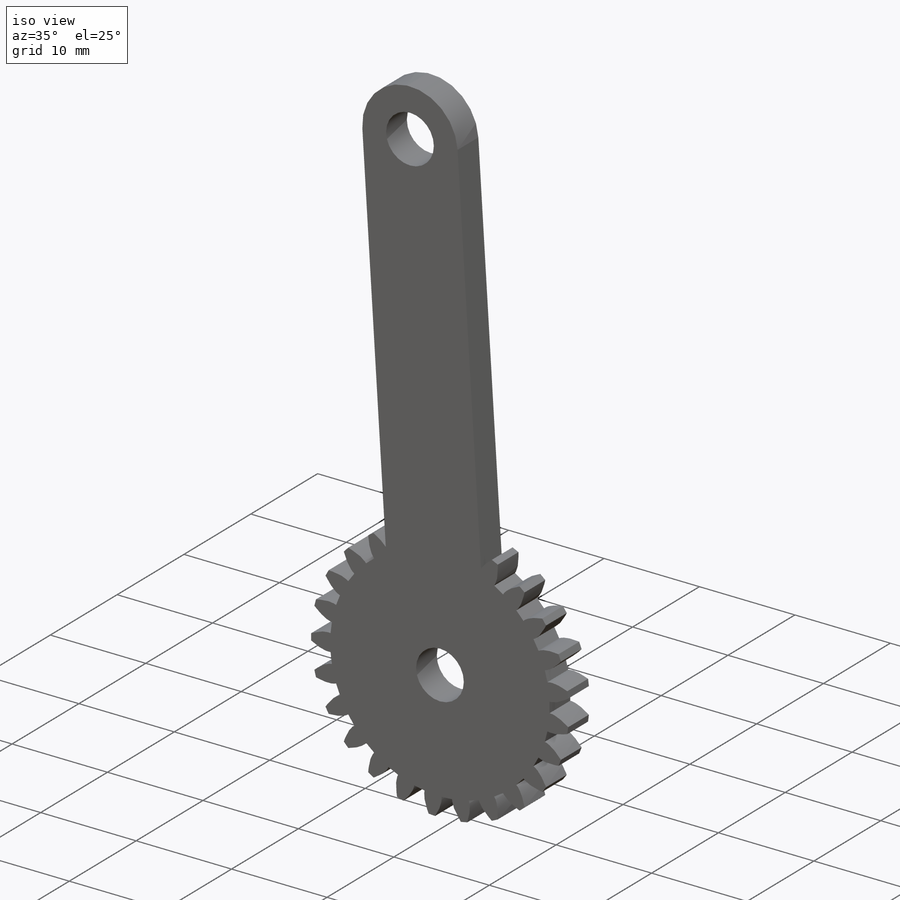
[diagram: iso view]
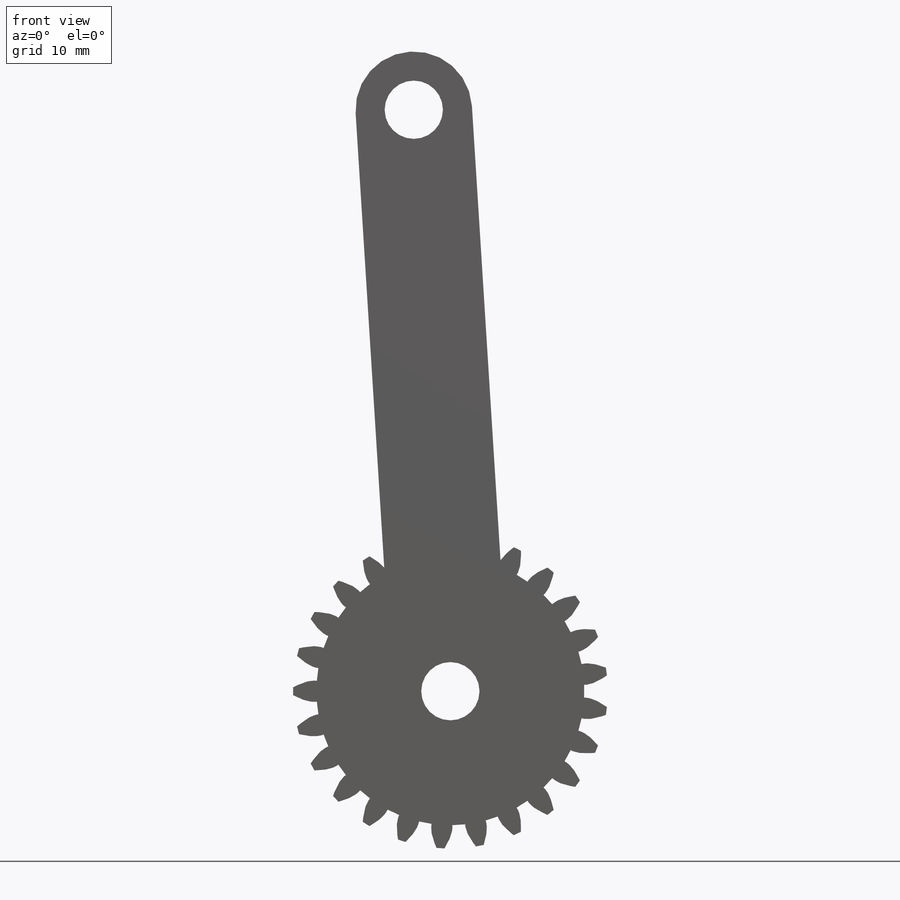
[diagram: front view]
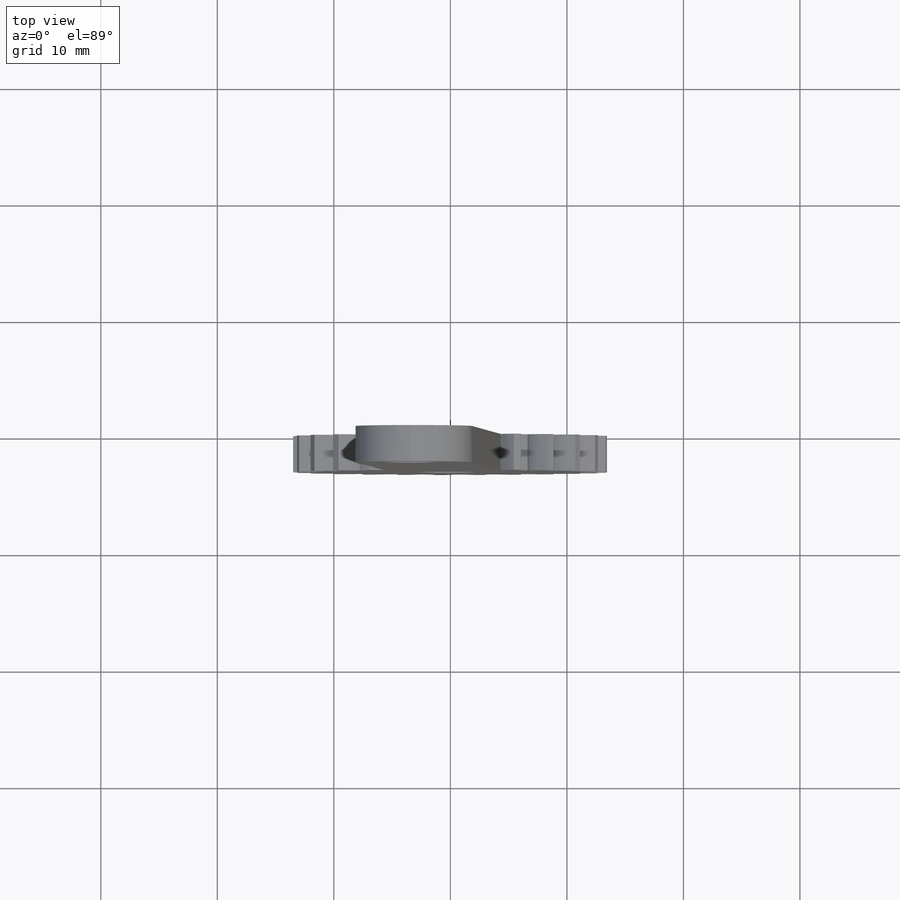
[diagram: top view]
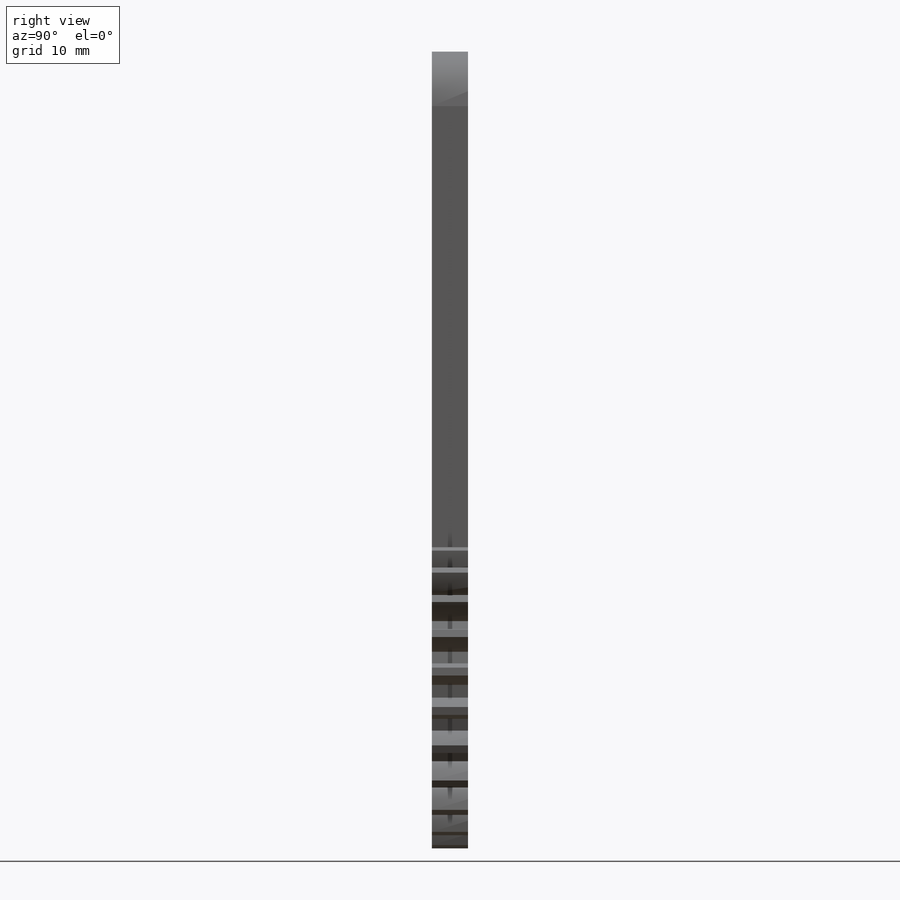
[diagram: right view]
SOLIDWORKS PART (.sldprt)
format: sldprt  version: not decoded by parser v0  size: 739,840 bytes
history: native  units: mm
features: sketch x5, extrude x4, fillet x2, material x1, pattern_circular x1 (+13 scaffold rows collapsed)
feature tree (26):
  scaffold x13  (default folders/planes/origin — collapsed)
  material  "Teak"
  sketch  "Sketch1"  dims[c1.D1=25.0mm c1.D2=~11.621169mm c2.D2=20.0deg c2.D3=~11.621169mm c3.D3=90.0deg c3.D4=~4.275252mm c3.D5=~7.054218mm c3.D6=~5.010999mm c4.D6=90.0deg c4.D7=~7.275252mm c4.D8=~1.678816mm c4.D9=~2.275252mm c4.D10=~5.944623mm c4.D5=3.0mm c5.D8=2.0mm c5.D10=~4.275252mm]
  sketch  "Sketch2"  dims[c1.D2=27.0mm c1.D1=~16.226949mm c2.D1=3.6deg c2.D3=0.25mm c3.D1=~11.494853mm c4.D1=3.6deg c5.D1=12.5mm c6.D1=3.6deg]
  extrude  "Boss-Extrude2"  Depth=3.1mm
  sketch  "Sketch4"  dims[D1=5.0mm]
  extrude  "Boss-Extrude3"  [1 undecoded]
  pattern_circular  "CirPattern1"  Count=25 Angle=14.4deg
  sketch  "Sketch5"  dims[c1.D3=5.0mm c1.D1=~23.394487mm c2.D1=14.4deg c3.D1=~11.494853mm c4.D1=7.2deg c4.D2=10.0mm c4.D4=5.0mm c4.D5=50.0mm c4.D6=~9.952587mm c5.D6=90.0deg c5.D7=~13.495704mm c6.D7=14.4deg]
  extrude  "Boss-Extrude4"  [1 undecoded]
  fillet  "Fillet1"  Radius=5mm
  sketch  "Sketch6"  dims[c1.D3=5.0mm c1.D1=~23.394487mm c2.D1=14.4deg c3.D1=~11.494853mm c4.D1=0.0deg c4.D2=10.0mm c4.D4=5.0mm c4.D5=50.0mm c4.D6=~9.952587mm c5.D6=90.0deg c5.D7=~9.900911mm]
  extrude  "Boss-Extrude6"  [1 undecoded]
  fillet  "Fillet2"  Radius=5mm
decode coverage: 9 of 12 modeling features carry decoded parameters
note: ~ marks probable driven/reference dimensions
note: 3 parameter values undecoded
summary: no parameter record found for 3 features
note: suppression state not decoded; provenance and decode notes live in map.json
